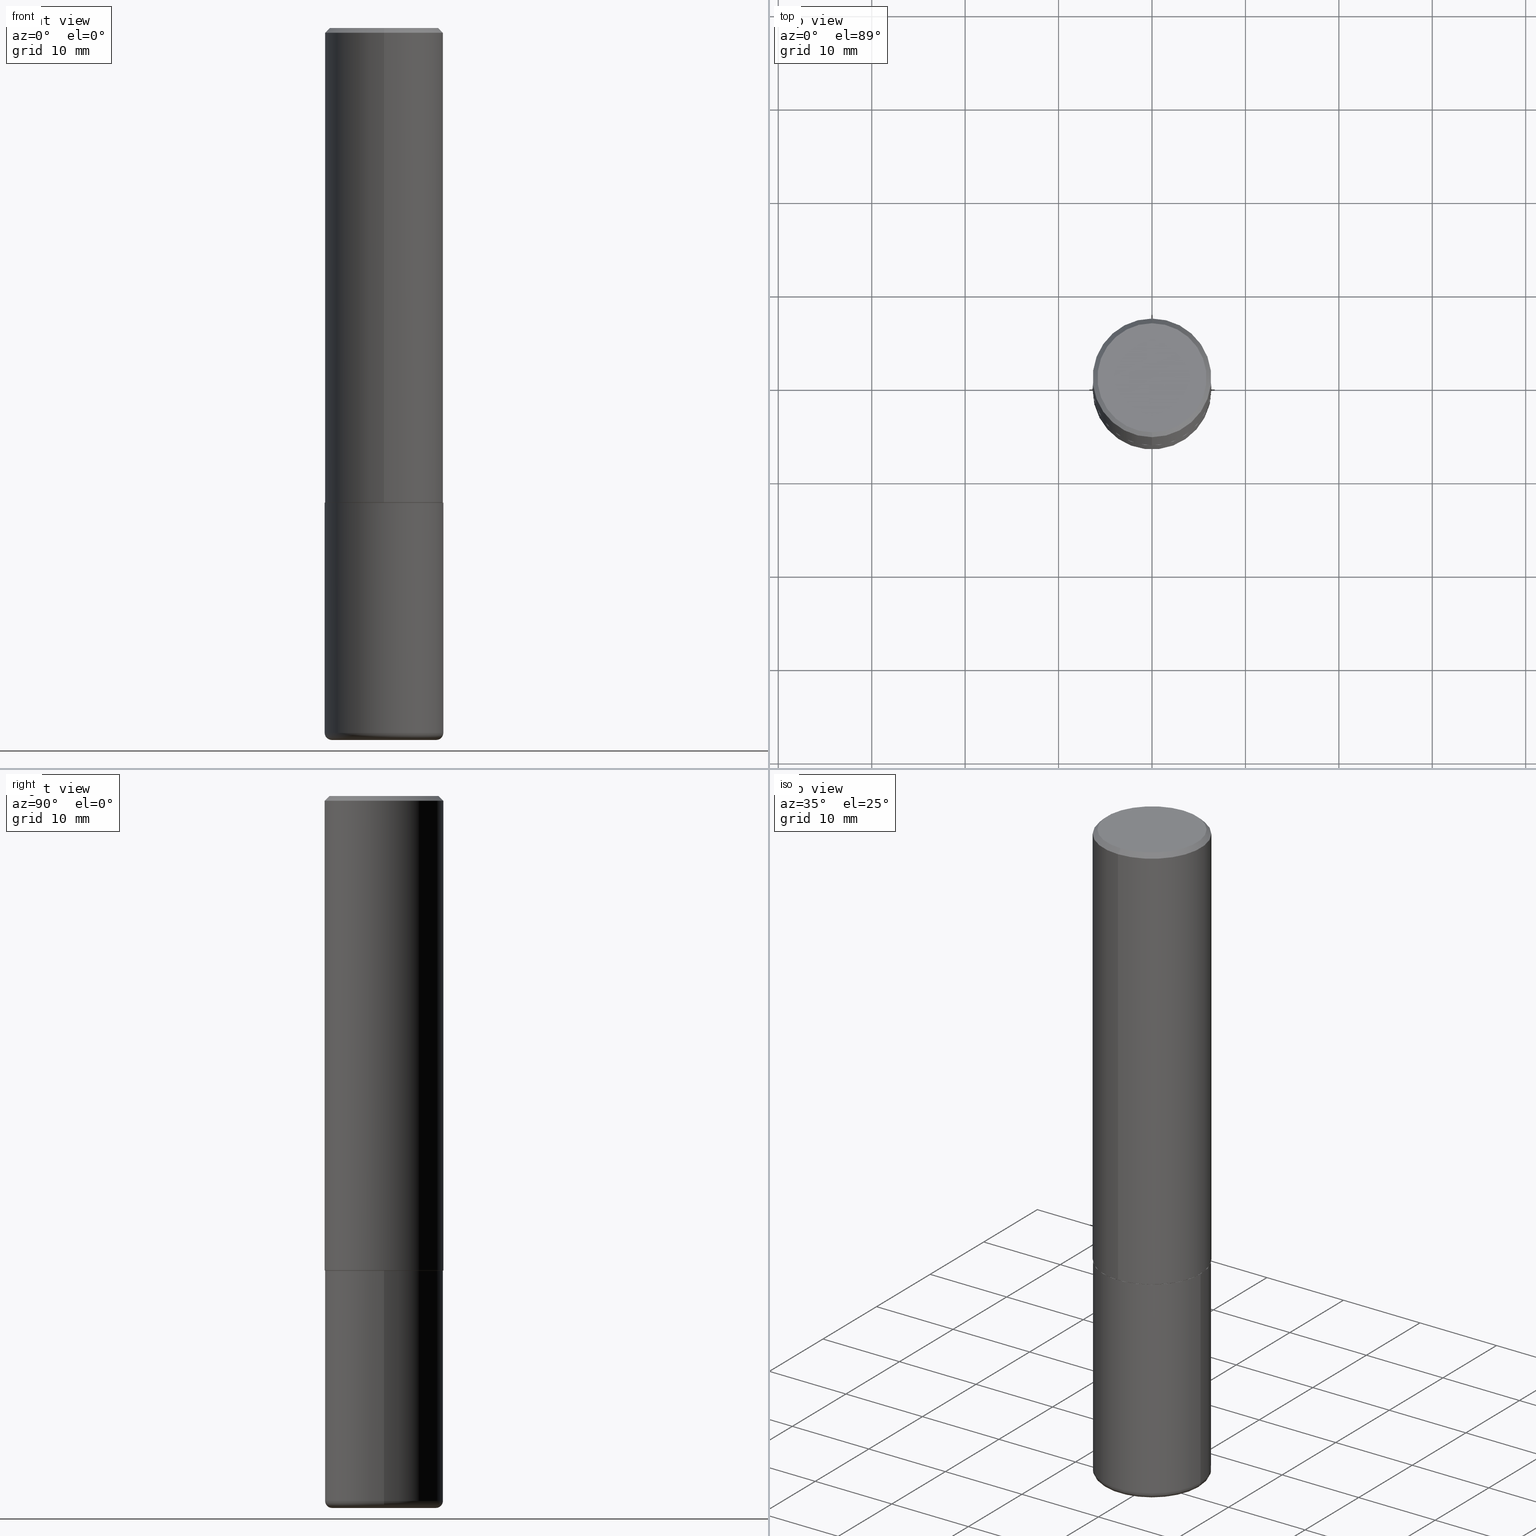
[diagram: canonical four-view strip — front | top / right | iso, engineering-drawing reading convention]
A machine part, canonical four-view strip (front | top / right | iso — engineering-drawing reading convention). The complete STEP part file that produces these views, byte-faithful:
ISO-10303-21;
HEADER;
FILE_DESCRIPTION (( 'STEP AP203' ),
    '1' );
FILE_NAME ('36574.STEP',
    '2024-03-01T16:45:40',
    ( '' ),
    ( '' ),
    'SwSTEP 2.0',
    'SolidWorks 2023',
    '' );
FILE_SCHEMA (( 'CONFIG_CONTROL_DESIGN' ));
ENDSEC;

DATA;
#1 = ORIENTED_EDGE ( 'NONE', *, *, #191, .T. ) ;
#2 = AXIS2_PLACEMENT_3D ( 'NONE', #237, #38, #359 ) ;
#3 = CONICAL_SURFACE ( 'NONE', #358, 0.2500000000000000555, 0.7853981633974471688 ) ;
#4 = ORIENTED_EDGE ( 'NONE', *, *, #144, .F. ) ;
#5 = MANIFOLD_SOLID_BREP ( 'Body-Move/Copy2[1]', #226 ) ;
#6 = APPROVAL ( #410, 'UNSPECIFIED' ) ;
#7 = ORIENTED_EDGE ( 'NONE', *, *, #290, .F. ) ;
#8 = DIRECTION ( 'NONE',  ( 2.438088387897960049E-29, -3.491481338843145188E-15, -1.000000000000000000 ) ) ;
#9 = ORIENTED_EDGE ( 'NONE', *, *, #245, .T. ) ;
#10 = CONICAL_SURFACE ( 'NONE', #98, 0.2489999999999999991, 0.7853981633976704346 ) ;
#11 = PERSON_AND_ORGANIZATION ( #36, #148 ) ;
#12 = FACE_OUTER_BOUND ( 'NONE', #134, .T. ) ;
#13 = CARTESIAN_POINT ( 'NONE',  ( 1.606081415867842645E-15, 0.2300000000000002043, -8.970083069684097739E-16 ) ) ;
#14 = APPROVAL_ROLE ( '' ) ;
#15 = CC_DESIGN_DATE_AND_TIME_ASSIGNMENT ( #365, #395, ( #159 ) ) ;
#16 = DIRECTION ( 'NONE',  ( -6.982962677686266711E-15, -1.000000000000000000, 3.278217592397113101E-15 ) ) ;
#17 = AXIS2_PLACEMENT_3D ( 'NONE', #351, #417, #29 ) ;
#18 = CARTESIAN_POINT ( 'NONE',  ( 4.890937612370273754E-29, -6.982962677686291954E-15, -2.000000000000000444 ) ) ;
#19 = FACE_OUTER_BOUND ( 'NONE', #101, .T. ) ;
#20 = PRODUCT_RELATED_PRODUCT_CATEGORY ( 'detail', '', ( #355 ) ) ;
#21 = DIRECTION ( 'NONE',  ( -4.851104656540957964E-15, -0.7071067811865491270, -0.7071067811865459074 ) ) ;
#22 = ADVANCED_FACE ( 'NONE', ( #12 ), #80, .T. ) ;
#23 = ADVANCED_FACE ( 'NONE', ( #78 ), #294, .T. ) ;
#24 = PERSON_AND_ORGANIZATION_ROLE ( 'design_owner' ) ;
#25 = AXIS2_PLACEMENT_3D ( 'NONE', #49, #354, #387 ) ;
#26 = CARTESIAN_POINT ( 'NONE',  ( -0.2500000000000000000, -6.899974287624967004E-15, -2.000000000000000444 ) ) ;
#27 = DIRECTION ( 'NONE',  ( 1.000000000000000000, -6.982962677686262766E-15, 4.883557194083111780E-29 ) ) ;
#28 = PERSON_AND_ORGANIZATION ( #36, #148 ) ;
#29 = DIRECTION ( 'NONE',  ( -6.982962677686265133E-15, -1.000000000000000000, 3.291383124896702687E-15 ) ) ;
#30 = VERTEX_POINT ( 'NONE', #388 ) ;
#31 = AXIS2_PLACEMENT_3D ( 'NONE', #307, #152, #27 ) ;
#32 = CARTESIAN_POINT ( 'NONE',  ( -0.2200000000000000011, -8.806505557691921187E-15, -2.970000000000000195 ) ) ;
#33 = PRODUCT_DEFINITION_SHAPE ( 'NONE', 'NONE',  #299 ) ;
#34 = ORIENTED_EDGE ( 'NONE', *, *, #197, .T. ) ;
#35 = DESIGN_CONTEXT ( 'detailed design', #390, 'design' ) ;
#36 = PERSON ( 'UNSPECIFIED', 'UNSPECIFIED', 'UNSPECIFIED', ('UNSPECIFIED'), ('UNSPECIFIED'), ('UNSPECIFIED') ) ;
#37 = ORIENTED_EDGE ( 'NONE', *, *, #243, .T. ) ;
#38 = DIRECTION ( 'NONE',  ( -2.445468806185136597E-29, 3.491481338843145583E-15, 1.000000000000000000 ) ) ;
#39 = EDGE_CURVE ( 'NONE', #30, #315, #384, .T. ) ;
#40 = APPROVAL_STATUS ( 'not_yet_approved' ) ;
#41 = EDGE_CURVE ( 'NONE', #167, #323, #158, .T. ) ;
#42 = AXIS2_PLACEMENT_3D ( 'NONE', #277, #332, #297 ) ;
#43 = AXIS2_PLACEMENT_3D ( 'NONE', #284, #220, #382 ) ;
#44 = ORIENTED_EDGE ( 'NONE', *, *, #406, .F. ) ;
#45 = ORIENTED_EDGE ( 'NONE', *, *, #165, .T. ) ;
#46 = PERSON_AND_ORGANIZATION ( #36, #148 ) ;
#47 = DIRECTION ( 'NONE',  ( 5.024295867789177050E-15, 0.7071067811867068897, 0.7071067811863879227 ) ) ;
#48 = APPROVAL_DATE_TIME ( #298, #214 ) ;
#49 = CARTESIAN_POINT ( 'NONE',  ( 4.890937612370273754E-29, -6.982962677686291954E-15, -2.000000000000000444 ) ) ;
#50 = UNCERTAINTY_MEASURE_WITH_UNIT (LENGTH_MEASURE( 1.000000000000000082E-05 ), #312, 'distance_accuracy_value', 'NONE');
#51 = AXIS2_PLACEMENT_3D ( 'NONE', #361, #8, #231 ) ;
#52 = EDGE_CURVE ( 'NONE', #415, #338, #181, .T. ) ;
#53 = CALENDAR_DATE ( 2024, 1, 3 ) ;
#54 = CARTESIAN_POINT ( 'NONE',  ( 4.890205017583842726E-31, -6.984011795117202972E-17, -0.02000000000000005593 ) ) ;
#55 = PERSON_AND_ORGANIZATION ( #36, #148 ) ;
#56 = CARTESIAN_POINT ( 'NONE',  ( 1.745740669421567269E-15, 0.2499999999999999722, -0.02000000000000093023 ) ) ;
#57 = ADVANCED_FACE ( 'NONE', ( #170 ), #110, .T. ) ;
#58 = CARTESIAN_POINT ( 'NONE',  ( -0.2200000000000000011, -8.752296367410555115E-15, -2.999999999999999556 ) ) ;
#59 = CIRCLE ( 'NONE', #325, 0.2500000000000000000 ) ;
#60 = CC_DESIGN_SECURITY_CLASSIFICATION ( #159, ( #275 ) ) ;
#61 = DIRECTION ( 'NONE',  ( 2.445102508791914532E-29, -3.492005897558592316E-15, -1.000000000000000000 ) ) ;
#62 = DIRECTION ( 'NONE',  ( 1.000000000000000000, -6.982962677686269866E-15, 0.000000000000000000 ) ) ;
#63 = DIRECTION ( 'NONE',  ( 7.105427357601001859E-15, 1.000000000000000000, -3.491481338843145583E-15 ) ) ;
#64 = ORIENTED_EDGE ( 'NONE', *, *, #41, .F. ) ;
#65 = VECTOR ( 'NONE', #242, 39.37007874015748143 ) ;
#66 = APPLICATION_PROTOCOL_DEFINITION ( 'international standard', 'config_control_design', 1994, #390 ) ;
#67 = CARTESIAN_POINT ( 'NONE',  ( 0.2200000000000000011, -1.201069580562041471E-14, -2.999999999999999556 ) ) ;
#68 = ORIENTED_EDGE ( 'NONE', *, *, #362, .T. ) ;
#69 = LINE ( 'NONE', #216, #79 ) ;
#70 = ORIENTED_EDGE ( 'NONE', *, *, #233, .T. ) ;
#71 = ADVANCED_FACE ( 'NONE', ( #265 ), #194, .T. ) ;
#72 = ORIENTED_EDGE ( 'NONE', *, *, #328, .F. ) ;
#73 = PERSON_AND_ORGANIZATION ( #36, #148 ) ;
#74 = CIRCLE ( 'NONE', #86, 0.02999999999999971440 ) ;
#75 = DIRECTION ( 'NONE',  ( -2.445102508791913971E-29, 3.492005897558592710E-15, 1.000000000000000000 ) ) ;
#76 = ORIENTED_EDGE ( 'NONE', *, *, #185, .T. ) ;
#77 = DIRECTION ( 'NONE',  ( -6.982962677686265922E-15, -1.000000000000000000, 3.492005897558592316E-15 ) ) ;
#78 = FACE_OUTER_BOUND ( 'NONE', #353, .T. ) ;
#79 = VECTOR ( 'NONE', #136, 39.37007874015748143 ) ;
#80 = CYLINDRICAL_SURFACE ( 'NONE', #273, 0.2500000000000001110 ) ;
#81 = APPLICATION_CONTEXT ( 'configuration controlled 3d designs of mechanical parts and assemblies' ) ;
#82 = DIRECTION ( 'NONE',  ( -2.445468806185136597E-29, 3.491481338843145583E-15, 1.000000000000000000 ) ) ;
#83 = ORIENTED_EDGE ( 'NONE', *, *, #406, .T. ) ;
#84 = PERSON_AND_ORGANIZATION_ROLE ( 'creator' ) ;
#85 = DIRECTION ( 'NONE',  ( -2.445468806185136597E-29, 3.491481338843145583E-15, 1.000000000000000000 ) ) ;
#86 = AXIS2_PLACEMENT_3D ( 'NONE', #32, #63, #337 ) ;
#87 = CIRCLE ( 'NONE', #292, 0.2489999999999999991 ) ;
#88 = DIMENSIONAL_EXPONENTS ( 1.000000000000000000, 0.000000000000000000, 0.000000000000000000, 0.000000000000000000, 0.000000000000000000, 0.000000000000000000, 0.000000000000000000 ) ;
#89 = FACE_OUTER_BOUND ( 'NONE', #221, .T. ) ;
#90 = CARTESIAN_POINT ( 'NONE',  ( 4.890205017583842726E-31, -6.984011795117202972E-17, -0.02000000000000005593 ) ) ;
#91 = FACE_OUTER_BOUND ( 'NONE', #263, .T. ) ;
#92 = CIRCLE ( 'NONE', #202, 0.02999999999999971440 ) ;
#93 = PLANE ( 'NONE',  #189 ) ;
#94 = DIRECTION ( 'NONE',  ( 1.000000000000000000, 0.000000000000000000, 0.000000000000000000 ) ) ;
#95 = DIRECTION ( 'NONE',  ( -6.982962677686265133E-15, -1.000000000000000000, 3.291383124896702687E-15 ) ) ;
#96 = ORIENTED_EDGE ( 'NONE', *, *, #39, .T. ) ;
#97 = CARTESIAN_POINT ( 'NONE',  ( 1.675911042644704760E-15, 0.2300000000000002043, -9.908552574983423647E-16 ) ) ;
#98 = AXIS2_PLACEMENT_3D ( 'NONE', #304, #175, #206 ) ;
#99 = CALENDAR_DATE ( 2024, 1, 3 ) ;
#100 = LINE ( 'NONE', #190, #132 ) ;
#101 = EDGE_LOOP ( 'NONE', ( #45, #186, #258, #341 ) ) ;
#102 = APPLICATION_PROTOCOL_DEFINITION ( 'international standard', 'config_control_design', 1994, #81 ) ;
#103 = LENGTH_MEASURE_WITH_UNIT ( LENGTH_MEASURE( 0.02539999999999999897 ), #309 );
#104 = ORIENTED_EDGE ( 'NONE', *, *, #107, .T. ) ;
#105 = LINE ( 'NONE', #133, #234 ) ;
#106 = VERTEX_POINT ( 'NONE', #232 ) ;
#107 = EDGE_CURVE ( 'NONE', #356, #218, #141, .T. ) ;
#108 = ADVANCED_FACE ( 'NONE', ( #91 ), #399, .F. ) ;
#109 = CARTESIAN_POINT ( 'NONE',  ( 0.000000000000000000, 0.000000000000000000, 0.000000000000000000 ) ) ;
#110 = PLANE ( 'NONE',  #51 ) ;
#111 = CARTESIAN_POINT ( 'NONE',  ( 4.589308283664181382E-45, -6.554282094368286806E-31, -1.876939010598653295E-16 ) ) ;
#112 = AXIS2_PLACEMENT_3D ( 'NONE', #177, #394, #154 ) ;
#113 = APPROVAL_PERSON_ORGANIZATION ( #73, #214, #14 ) ;
#114 = CARTESIAN_POINT ( 'NONE',  ( 1.769251412042698169E-15, 0.2489999999999930047, -2.000000000000000888 ) ) ;
#115 = DATE_AND_TIME ( #53, #228 ) ;
#116 = EDGE_LOOP ( 'NONE', ( #188, #386, #383, #1 ) ) ;
#117 = COORDINATED_UNIVERSAL_TIME_OFFSET ( 5, 0, .BEHIND. ) ;
#118 = DIRECTION ( 'NONE',  ( 6.982962677686265922E-15, 1.000000000000000000, -3.492005897558592710E-15 ) ) ;
#119 = ADVANCED_FACE ( 'NONE', ( #300 ), #3, .T. ) ;
#120 = FACE_OUTER_BOUND ( 'NONE', #116, .T. ) ;
#121 = AXIS2_PLACEMENT_3D ( 'NONE', #54, #61, #150 ) ;
#122 = DIRECTION ( 'NONE',  ( -2.445468806185136597E-29, 3.491481338843145583E-15, 1.000000000000000000 ) ) ;
#123 = CALENDAR_DATE ( 2024, 1, 3 ) ;
#124 = DIRECTION ( 'NONE',  ( 1.000000000000000000, -6.982962677686262766E-15, 4.883557194083111780E-29 ) ) ;
#125 = CARTESIAN_POINT ( 'NONE',  ( 4.887759915075037439E-29, -6.980519789219626565E-15, -1.999000000000000110 ) ) ;
#126 = CONICAL_SURFACE ( 'NONE', #121, 0.2500000000000000555, 0.7853981633974471688 ) ;
#127 =( GEOMETRIC_REPRESENTATION_CONTEXT ( 3 ) GLOBAL_UNCERTAINTY_ASSIGNED_CONTEXT ( ( #50 ) ) GLOBAL_UNIT_ASSIGNED_CONTEXT ( ( #312, #187, #252 ) ) REPRESENTATION_CONTEXT ( 'NONE', 'WORKASPACE' ) );
#128 = CARTESIAN_POINT ( 'NONE',  ( -0.2500000000000000000, 1.776356839400250465E-15, -1.229733772563726445E-29 ) ) ;
#129 = DIRECTION ( 'NONE',  ( -4.937700262165644559E-15, -0.7071067811867021158, 0.7071067811863929187 ) ) ;
#130 = EDGE_CURVE ( 'NONE', #315, #30, #59, .T. ) ;
#131 = DIRECTION ( 'NONE',  ( -2.445102508791914532E-29, 3.492005897558592316E-15, 1.000000000000000000 ) ) ;
#132 = VECTOR ( 'NONE', #21, 39.37007874015748143 ) ;
#133 = CARTESIAN_POINT ( 'NONE',  ( -1.738757706743831162E-15, -0.2490000000000069935, -1.999999999999999112 ) ) ;
#134 = EDGE_LOOP ( 'NONE', ( #83, #295, #223, #7 ) ) ;
#135 = EDGE_CURVE ( 'NONE', #218, #199, #278, .T. ) ;
#136 = DIRECTION ( 'NONE',  ( -2.445468806185136877E-29, 3.491481338843145188E-15, 1.000000000000000000 ) ) ;
#137 = VERTEX_POINT ( 'NONE', #210 ) ;
#138 = CC_DESIGN_APPROVAL ( #214, ( #275 ) ) ;
#139 = ORIENTED_EDGE ( 'NONE', *, *, #135, .F. ) ;
#140 = CARTESIAN_POINT ( 'NONE',  ( 0.000000000000000000, 0.000000000000000000, 0.000000000000000000 ) ) ;
#141 = LINE ( 'NONE', #114, #163 ) ;
#142 = EDGE_LOOP ( 'NONE', ( #162, #322, #418, #255 ) ) ;
#143 = DIRECTION ( 'NONE',  ( 2.445102508791913971E-29, -3.492005897558592710E-15, -1.000000000000000000 ) ) ;
#144 = EDGE_CURVE ( 'NONE', #356, #106, #87, .T. ) ;
#145 = DIRECTION ( 'NONE',  ( 2.438088387897960049E-29, -3.491481338843145188E-15, -1.000000000000000000 ) ) ;
#146 = CARTESIAN_POINT ( 'NONE',  ( 0.2200000000000000011, -1.190595136545512292E-14, -2.970000000000000195 ) ) ;
#147 = AXIS2_PLACEMENT_3D ( 'NONE', #125, #247, #16 ) ;
#148 = ORGANIZATION ( 'UNSPECIFIED', 'UNSPECIFIED', '' ) ;
#149 = COORDINATED_UNIVERSAL_TIME_OFFSET ( 5, 0, .BEHIND. ) ;
#150 = DIRECTION ( 'NONE',  ( 6.982962677686265133E-15, 1.000000000000000000, -3.500180241882336472E-15 ) ) ;
#151 = FACE_OUTER_BOUND ( 'NONE', #380, .T. ) ;
#152 = DIRECTION ( 'NONE',  ( -2.445468806185136597E-29, 3.491481338843145583E-15, 1.000000000000000000 ) ) ;
#153 = PERSON_AND_ORGANIZATION ( #36, #148 ) ;
#154 = DIRECTION ( 'NONE',  ( 1.000000000000000000, -6.982962677686270655E-15, 0.000000000000000000 ) ) ;
#155 = LINE ( 'NONE', #413, #261 ) ;
#156 = ADVANCED_FACE ( 'NONE', ( #120 ), #126, .T. ) ;
#157 = EDGE_LOOP ( 'NONE', ( #72, #4 ) ) ;
#158 = CIRCLE ( 'NONE', #25, 0.2500000000000000000 ) ;
#159 = SECURITY_CLASSIFICATION ( '', '', #205 ) ;
#160 = CARTESIAN_POINT ( 'NONE',  ( 1.772804125721499264E-15, 0.2489999999999930047, -2.000000000000000888 ) ) ;
#161 = ORIENTED_EDGE ( 'NONE', *, *, #389, .T. ) ;
#162 = ORIENTED_EDGE ( 'NONE', *, *, #305, .F. ) ;
#163 = VECTOR ( 'NONE', #47, 39.37007874015748854 ) ;
#164 = DIRECTION ( 'NONE',  ( -2.445102508791914532E-29, 3.492005897558592316E-15, 1.000000000000000000 ) ) ;
#165 = EDGE_CURVE ( 'NONE', #256, #200, #306, .T. ) ;
#166 = ORIENTED_EDGE ( 'NONE', *, *, #305, .T. ) ;
#167 = VERTEX_POINT ( 'NONE', #241 ) ;
#168 = APPROVAL ( #266, 'UNSPECIFIED' ) ;
#169 = CIRCLE ( 'NONE', #147, 0.2500000000000002220 ) ;
#170 = FACE_OUTER_BOUND ( 'NONE', #192, .T. ) ;
#171 = ADVANCED_FACE ( 'NONE', ( #363 ), #93, .F. ) ;
#172 = CARTESIAN_POINT ( 'NONE',  ( 4.890937612370273754E-29, -6.982962677686291954E-15, -2.000000000000000444 ) ) ;
#173 = COORDINATED_UNIVERSAL_TIME_OFFSET ( 5, 0, .BEHIND. ) ;
#174 = DIRECTION ( 'NONE',  ( -2.445468806185136597E-29, 3.491481338843145583E-15, 1.000000000000000000 ) ) ;
#175 = DIRECTION ( 'NONE',  ( -2.445102508791914532E-29, 3.492005897558592316E-15, 1.000000000000000000 ) ) ;
#176 = DIRECTION ( 'NONE',  ( 1.000000000000000000, -6.982962677686270655E-15, 0.000000000000000000 ) ) ;
#177 = CARTESIAN_POINT ( 'NONE',  ( 7.336406418555408669E-29, -1.047444401652943478E-14, -2.999999999999999556 ) ) ;
#178 = DIRECTION ( 'NONE',  ( 0.000000000000000000, 0.000000000000000000, 1.000000000000000000 ) ) ;
#179 = FACE_OUTER_BOUND ( 'NONE', #142, .T. ) ;
#180 = AXIS2_PLACEMENT_3D ( 'NONE', #391, #82, #229 ) ;
#181 = CIRCLE ( 'NONE', #339, 0.2300000000000002043 ) ;
#182 = LOCAL_TIME ( 11, 45, 40.00000000000000000, #149 ) ;
#183 = LINE ( 'NONE', #128, #248 ) ;
#184 = ORIENTED_EDGE ( 'NONE', *, *, #41, .T. ) ;
#185 = EDGE_CURVE ( 'NONE', #323, #167, #285, .T. ) ;
#186 = ORIENTED_EDGE ( 'NONE', *, *, #373, .T. ) ;
#187 =( NAMED_UNIT ( * ) PLANE_ANGLE_UNIT ( ) SI_UNIT ( $, .RADIAN. ) );
#188 = ORIENTED_EDGE ( 'NONE', *, *, #362, .F. ) ;
#189 = AXIS2_PLACEMENT_3D ( 'NONE', #13, #143, #118 ) ;
#190 = CARTESIAN_POINT ( 'NONE',  ( -1.715124499442882496E-15, -0.2500000000000001110, -0.01999999999999918163 ) ) ;
#191 = EDGE_CURVE ( 'NONE', #199, #393, #217, .T. ) ;
#192 = EDGE_LOOP ( 'NONE', ( #346, #215 ) ) ;
#193 = ORIENTED_EDGE ( 'NONE', *, *, #290, .T. ) ;
#194 = CYLINDRICAL_SURFACE ( 'NONE', #239, 0.2500000000000001110 ) ;
#195 = CC_DESIGN_DATE_AND_TIME_ASSIGNMENT ( #196, #350, ( #299 ) ) ;
#196 = DATE_AND_TIME ( #347, #414 ) ;
#197 = EDGE_CURVE ( 'NONE', #338, #415, #352, .T. ) ;
#198 = EDGE_LOOP ( 'NONE', ( #139, #70, #193, #259 ) ) ;
#199 = VERTEX_POINT ( 'NONE', #400 ) ;
#200 = VERTEX_POINT ( 'NONE', #58 ) ;
#201 = ADVANCED_BREP_SHAPE_REPRESENTATION ( '36574', ( #5, #416, #366 ), #127 ) ;
#202 = AXIS2_PLACEMENT_3D ( 'NONE', #146, #336, #62 ) ;
#203 = CARTESIAN_POINT ( 'NONE',  ( 4.890205017583829064E-29, -6.984011795117184631E-15, -2.000000000000000000 ) ) ;
#204 = ADVANCED_FACE ( 'NONE', ( #89 ), #10, .T. ) ;
#205 = SECURITY_CLASSIFICATION_LEVEL ( 'unclassified' ) ;
#206 = DIRECTION ( 'NONE',  ( -6.982962677686265133E-15, -1.000000000000000000, 3.291383124896702687E-15 ) ) ;
#207 = CALENDAR_DATE ( 2024, 1, 3 ) ;
#208 = CARTESIAN_POINT ( 'NONE',  ( 4.890205017583842726E-31, -6.984011795117202972E-17, -0.02000000000000005593 ) ) ;
#209 = EDGE_CURVE ( 'NONE', #415, #199, #331, .T. ) ;
#210 = CARTESIAN_POINT ( 'NONE',  ( -1.745740669421519346E-15, -0.2500000000000072164, -1.998999999999999444 ) ) ;
#211 = CIRCLE ( 'NONE', #254, 0.2489999999999999991 ) ;
#212 = CARTESIAN_POINT ( 'NONE',  ( 1.776356839400276103E-15, 0.2499999999999933109, -1.999000000000000998 ) ) ;
#213 = CARTESIAN_POINT ( 'NONE',  ( 4.890205017583829064E-29, -6.984011795117184631E-15, -2.000000000000000000 ) ) ;
#214 = APPROVAL ( #40, 'UNSPECIFIED' ) ;
#215 = ORIENTED_EDGE ( 'NONE', *, *, #245, .F. ) ;
#216 = CARTESIAN_POINT ( 'NONE',  ( 0.2500000000000000000, -1.745740669421566678E-15, 1.219044193948983948E-29 ) ) ;
#217 = CIRCLE ( 'NONE', #267, 0.2500000000000000555 ) ;
#218 = VERTEX_POINT ( 'NONE', #212 ) ;
#219 = DATE_AND_TIME ( #99, #379 ) ;
#220 = DIRECTION ( 'NONE',  ( -2.445468806185136597E-29, 3.491481338843145583E-15, 1.000000000000000000 ) ) ;
#221 = EDGE_LOOP ( 'NONE', ( #409, #104, #44, #281 ) ) ;
#222 = MECHANICAL_CONTEXT ( 'NONE', #81, 'mechanical' ) ;
#223 = ORIENTED_EDGE ( 'NONE', *, *, #249, .F. ) ;
#224 = CARTESIAN_POINT ( 'NONE',  ( -1.715124499442882496E-15, -0.2500000000000001110, -0.01999999999999918163 ) ) ;
#225 = ORIENTED_EDGE ( 'NONE', *, *, #233, .F. ) ;
#226 = CLOSED_SHELL ( 'NONE', ( #23, #230, #108, #375, #364, #57 ) ) ;
#227 = TOROIDAL_SURFACE ( 'NONE', #31, 0.2200000000000000011, 0.02999999999999969705 ) ;
#228 = LOCAL_TIME ( 11, 45, 40.00000000000000000, #173 ) ;
#229 = DIRECTION ( 'NONE',  ( 1.000000000000000000, -6.982962677686266711E-15, 4.876176775795935793E-29 ) ) ;
#230 = ADVANCED_FACE ( 'NONE', ( #19 ), #319, .T. ) ;
#231 = DIRECTION ( 'NONE',  ( -1.000000000000000000, 6.982962677686265922E-15, -4.876176775795935793E-29 ) ) ;
#232 = CARTESIAN_POINT ( 'NONE',  ( -1.738757706743831162E-15, -0.2490000000000069935, -1.999999999999999112 ) ) ;
#233 = EDGE_CURVE ( 'NONE', #218, #137, #169, .T. ) ;
#234 = VECTOR ( 'NONE', #129, 39.37007874015748143 ) ;
#235 = EDGE_LOOP ( 'NONE', ( #293, #381, #161, #225 ) ) ;
#236 = APPROVAL_DATE_TIME ( #115, #168 ) ;
#237 = CARTESIAN_POINT ( 'NONE',  ( 7.263042354369856275E-29, -1.036969957636414298E-14, -2.970000000000000195 ) ) ;
#238 = DIRECTION ( 'NONE',  ( 1.000000000000000000, -6.982962677686270655E-15, 0.000000000000000000 ) ) ;
#239 = AXIS2_PLACEMENT_3D ( 'NONE', #140, #318, #264 ) ;
#240 = CC_DESIGN_APPROVAL ( #6, ( #299 ) ) ;
#241 = CARTESIAN_POINT ( 'NONE',  ( 0.2500000000000000000, -8.728703347107858632E-15, -2.000000000000000444 ) ) ;
#242 = DIRECTION ( 'NONE',  ( -2.445102508791914532E-29, 3.492005897558592710E-15, 1.000000000000000000 ) ) ;
#243 = EDGE_CURVE ( 'NONE', #256, #30, #92, .T. ) ;
#244 = CARTESIAN_POINT ( 'NONE',  ( 7.263042354369856275E-29, -1.036969957636414298E-14, -2.970000000000000195 ) ) ;
#245 = EDGE_CURVE ( 'NONE', #200, #256, #314, .T. ) ;
#246 = CC_DESIGN_PERSON_AND_ORGANIZATION_ASSIGNMENT ( #272, #270, ( #159 ) ) ;
#247 = DIRECTION ( 'NONE',  ( -2.445102508791914532E-29, 3.492005897558592316E-15, 1.000000000000000000 ) ) ;
#248 = VECTOR ( 'NONE', #279, 39.37007874015748143 ) ;
#249 = EDGE_CURVE ( 'NONE', #393, #199, #377, .T. ) ;
#250 = FACE_OUTER_BOUND ( 'NONE', #235, .T. ) ;
#251 = CARTESIAN_POINT ( 'NONE',  ( 4.887759915075037439E-29, -6.980519789219626565E-15, -1.999000000000000110 ) ) ;
#252 =( NAMED_UNIT ( * ) SI_UNIT ( $, .STERADIAN. ) SOLID_ANGLE_UNIT ( ) );
#253 = CARTESIAN_POINT ( 'NONE',  ( -1.646519519465167954E-15, -0.2300000000000002043, 6.154674553786116072E-16 ) ) ;
#254 = AXIS2_PLACEMENT_3D ( 'NONE', #372, #131, #95 ) ;
#255 = ORIENTED_EDGE ( 'NONE', *, *, #185, .F. ) ;
#256 = VERTEX_POINT ( 'NONE', #67 ) ;
#257 = CARTESIAN_POINT ( 'NONE',  ( -0.2499999999999998612, -8.593342736963892519E-15, -2.970000000000000195 ) ) ;
#258 = ORIENTED_EDGE ( 'NONE', *, *, #39, .F. ) ;
#259 = ORIENTED_EDGE ( 'NONE', *, *, #191, .F. ) ;
#260 = AXIS2_PLACEMENT_3D ( 'NONE', #368, #85, #176 ) ;
#261 = VECTOR ( 'NONE', #404, 39.37007874015748143 ) ;
#262 = CC_DESIGN_PERSON_AND_ORGANIZATION_ASSIGNMENT ( #405, #24, ( #355 ) ) ;
#263 = EDGE_LOOP ( 'NONE', ( #184, #76 ) ) ;
#264 = DIRECTION ( 'NONE',  ( -6.982962677686266711E-15, -1.000000000000000000, 3.492005897558592710E-15 ) ) ;
#265 = FACE_OUTER_BOUND ( 'NONE', #198, .T. ) ;
#266 = APPROVAL_STATUS ( 'not_yet_approved' ) ;
#267 = AXIS2_PLACEMENT_3D ( 'NONE', #208, #302, #327 ) ;
#268 = ORIENTED_EDGE ( 'NONE', *, *, #130, .F. ) ;
#269 = CARTESIAN_POINT ( 'NONE',  ( 7.263042354369856275E-29, -1.036969957636414298E-14, -2.970000000000000195 ) ) ;
#270 = PERSON_AND_ORGANIZATION_ROLE ( 'classification_officer' ) ;
#271 = DIRECTION ( 'NONE',  ( 6.982962677686265133E-15, 1.000000000000000000, -3.500180241882336472E-15 ) ) ;
#272 = PERSON_AND_ORGANIZATION ( #36, #148 ) ;
#273 = AXIS2_PLACEMENT_3D ( 'NONE', #109, #357, #317 ) ;
#274 = VECTOR ( 'NONE', #301, 39.37007874015748143 ) ;
#275 = PRODUCT_DEFINITION_FORMATION_WITH_SPECIFIED_SOURCE ( 'ANY', '', #355, .NOT_KNOWN. ) ;
#276 = DIRECTION ( 'NONE',  ( -2.445102508791914532E-29, 3.492005897558592316E-15, 1.000000000000000000 ) ) ;
#277 = CARTESIAN_POINT ( 'NONE',  ( 4.589308283664181382E-45, -6.554282094368286806E-31, -1.876939010598653295E-16 ) ) ;
#278 = LINE ( 'NONE', #369, #65 ) ;
#279 = DIRECTION ( 'NONE',  ( -2.445468806185136877E-29, 3.491481338843145188E-15, 1.000000000000000000 ) ) ;
#280 = CYLINDRICAL_SURFACE ( 'NONE', #43, 0.2500000000000000000 ) ;
#281 = ORIENTED_EDGE ( 'NONE', *, *, #389, .F. ) ;
#282 = CARTESIAN_POINT ( 'NONE',  ( 4.890205017583842726E-31, -6.984011795117202972E-17, -0.02000000000000005593 ) ) ;
#283 = PERSON_AND_ORGANIZATION_ROLE ( 'creator' ) ;
#284 = CARTESIAN_POINT ( 'NONE',  ( 0.000000000000000000, 0.000000000000000000, 0.000000000000000000 ) ) ;
#285 = CIRCLE ( 'NONE', #398, 0.2500000000000000000 ) ;
#286 = ADVANCED_FACE ( 'NONE', ( #250 ), #392, .T. ) ;
#287 = APPROVAL_PERSON_ORGANIZATION ( #153, #6, #376 ) ;
#288 = DIRECTION ( 'NONE',  ( -6.982962677686265133E-15, -1.000000000000000000, 3.500180241882336472E-15 ) ) ;
#289 = ORIENTED_EDGE ( 'NONE', *, *, #348, .F. ) ;
#290 = EDGE_CURVE ( 'NONE', #137, #393, #155, .T. ) ;
#291 = ORIENTED_EDGE ( 'NONE', *, *, #209, .F. ) ;
#292 = AXIS2_PLACEMENT_3D ( 'NONE', #203, #276, #335 ) ;
#293 = ORIENTED_EDGE ( 'NONE', *, *, #107, .F. ) ;
#294 = CYLINDRICAL_SURFACE ( 'NONE', #180, 0.2500000000000000000 ) ;
#295 = ORIENTED_EDGE ( 'NONE', *, *, #135, .T. ) ;
#296 = ORIENTED_EDGE ( 'NONE', *, *, #197, .F. ) ;
#297 = DIRECTION ( 'NONE',  ( -6.982962677686265922E-15, -1.000000000000000000, 3.492005897558592316E-15 ) ) ;
#298 = DATE_AND_TIME ( #123, #334 ) ;
#299 = PRODUCT_DEFINITION ( 'UNKNOWN', '', #275, #35 ) ;
#300 = FACE_OUTER_BOUND ( 'NONE', #316, .T. ) ;
#301 = DIRECTION ( 'NONE',  ( 4.937700262164541731E-15, 0.7071067811865442421, -0.7071067811865507924 ) ) ;
#302 = DIRECTION ( 'NONE',  ( -2.445102508791914532E-29, 3.492005897558592316E-15, 1.000000000000000000 ) ) ;
#303 = CARTESIAN_POINT ( 'NONE',  ( 0.000000000000000000, 0.000000000000000000, 0.000000000000000000 ) ) ;
#304 = CARTESIAN_POINT ( 'NONE',  ( 4.890205017583829064E-29, -6.984011795117184631E-15, -2.000000000000000000 ) ) ;
#305 = EDGE_CURVE ( 'NONE', #315, #323, #183, .T. ) ;
#306 = CIRCLE ( 'NONE', #260, 0.2200000000000000011 ) ;
#307 = CARTESIAN_POINT ( 'NONE',  ( 7.263042354369856275E-29, -1.036969957636414298E-14, -2.970000000000000195 ) ) ;
#308 = CIRCLE ( 'NONE', #403, 0.2500000000000002220 ) ;
#309 =( LENGTH_UNIT ( ) NAMED_UNIT ( * ) SI_UNIT ( $, .METRE. ) );
#310 = EDGE_LOOP ( 'NONE', ( #313, #34 ) ) ;
#311 = COORDINATED_UNIVERSAL_TIME_OFFSET ( 5, 0, .BEHIND. ) ;
#312 =( CONVERSION_BASED_UNIT ( 'INCH', #103 ) LENGTH_UNIT ( ) NAMED_UNIT ( #88 ) );
#313 = ORIENTED_EDGE ( 'NONE', *, *, #52, .T. ) ;
#314 = CIRCLE ( 'NONE', #112, 0.2200000000000000011 ) ;
#315 = VERTEX_POINT ( 'NONE', #257 ) ;
#316 = EDGE_LOOP ( 'NONE', ( #296, #68, #349, #291 ) ) ;
#317 = DIRECTION ( 'NONE',  ( -6.982962677686266711E-15, -1.000000000000000000, 3.492005897558592710E-15 ) ) ;
#318 = DIRECTION ( 'NONE',  ( -2.445102508791914532E-29, 3.492005897558592316E-15, 1.000000000000000000 ) ) ;
#319 = TOROIDAL_SURFACE ( 'NONE', #370, 0.2200000000000000011, 0.02999999999999969705 ) ;
#320 = CC_DESIGN_APPROVAL ( #168, ( #159 ) ) ;
#321 = ORIENTED_EDGE ( 'NONE', *, *, #373, .F. ) ;
#322 = ORIENTED_EDGE ( 'NONE', *, *, #130, .T. ) ;
#323 = VERTEX_POINT ( 'NONE', #26 ) ;
#324 = APPROVAL_ROLE ( '' ) ;
#325 = AXIS2_PLACEMENT_3D ( 'NONE', #244, #122, #238 ) ;
#326 = APPROVAL_PERSON_ORGANIZATION ( #46, #168, #324 ) ;
#327 = DIRECTION ( 'NONE',  ( -6.982962677686265133E-15, -1.000000000000000000, 3.500180241882336472E-15 ) ) ;
#328 = EDGE_CURVE ( 'NONE', #106, #356, #211, .T. ) ;
#329 = CC_DESIGN_PERSON_AND_ORGANIZATION_ASSIGNMENT ( #55, #330, ( #275 ) ) ;
#330 = PERSON_AND_ORGANIZATION_ROLE ( 'design_supplier' ) ;
#331 = LINE ( 'NONE', #56, #274 ) ;
#332 = DIRECTION ( 'NONE',  ( -2.445102508791914532E-29, 3.492005897558592316E-15, 1.000000000000000000 ) ) ;
#333 = AXIS2_PLACEMENT_3D ( 'NONE', #282, #411, #288 ) ;
#334 = LOCAL_TIME ( 11, 45, 40.00000000000000000, #117 ) ;
#335 = DIRECTION ( 'NONE',  ( -6.982962677686265133E-15, -1.000000000000000000, 3.291383124896702687E-15 ) ) ;
#336 = DIRECTION ( 'NONE',  ( -6.982962677686266711E-15, -1.000000000000000000, 3.491481338843145583E-15 ) ) ;
#337 = DIRECTION ( 'NONE',  ( -1.000000000000000000, 7.105427357600993970E-15, 0.000000000000000000 ) ) ;
#338 = VERTEX_POINT ( 'NONE', #253 ) ;
#339 = AXIS2_PLACEMENT_3D ( 'NONE', #111, #164, #77 ) ;
#340 = DIRECTION ( 'NONE',  ( -6.982962677686265922E-15, -1.000000000000000000, 3.492005897558592710E-15 ) ) ;
#341 = ORIENTED_EDGE ( 'NONE', *, *, #243, .F. ) ;
#342 = CC_DESIGN_PERSON_AND_ORGANIZATION_ASSIGNMENT ( #28, #283, ( #299 ) ) ;
#343 = ADVANCED_FACE ( 'NONE', ( #378 ), #408, .F. ) ;
#344 = APPROVAL_DATE_TIME ( #219, #6 ) ;
#345 = DIRECTION ( 'NONE',  ( -6.982962677686266711E-15, -1.000000000000000000, 3.278217592397113101E-15 ) ) ;
#346 = ORIENTED_EDGE ( 'NONE', *, *, #165, .F. ) ;
#347 = CALENDAR_DATE ( 2024, 1, 3 ) ;
#348 = EDGE_CURVE ( 'NONE', #30, #167, #69, .T. ) ;
#349 = ORIENTED_EDGE ( 'NONE', *, *, #249, .T. ) ;
#350 = DATE_TIME_ROLE ( 'creation_date' ) ;
#351 = CARTESIAN_POINT ( 'NONE',  ( 4.890205017583829064E-29, -6.984011795117184631E-15, -2.000000000000000000 ) ) ;
#352 = CIRCLE ( 'NONE', #42, 0.2300000000000002043 ) ;
#353 = EDGE_LOOP ( 'NONE', ( #96, #166, #64, #289 ) ) ;
#354 = DIRECTION ( 'NONE',  ( -2.445468806185136597E-29, 3.491481338843145583E-15, 1.000000000000000000 ) ) ;
#355 = PRODUCT ( '36574', '36574', '', ( #222 ) ) ;
#356 = VERTEX_POINT ( 'NONE', #160 ) ;
#357 = DIRECTION ( 'NONE',  ( -2.445102508791914532E-29, 3.492005897558592316E-15, 1.000000000000000000 ) ) ;
#358 = AXIS2_PLACEMENT_3D ( 'NONE', #90, #371, #271 ) ;
#359 = DIRECTION ( 'NONE',  ( 1.000000000000000000, -6.982962677686270655E-15, 0.000000000000000000 ) ) ;
#360 = SHAPE_DEFINITION_REPRESENTATION ( #33, #201 ) ;
#361 = CARTESIAN_POINT ( 'NONE',  ( 1.253905894061077399E-28, -3.023949488354168584E-15, -2.999999999999999556 ) ) ;
#362 = EDGE_CURVE ( 'NONE', #338, #393, #100, .T. ) ;
#363 = FACE_OUTER_BOUND ( 'NONE', #310, .T. ) ;
#364 = ADVANCED_FACE ( 'NONE', ( #151 ), #227, .T. ) ;
#365 = DATE_AND_TIME ( #207, #182 ) ;
#366 = AXIS2_PLACEMENT_3D ( 'NONE', #303, #178, #94 ) ;
#367 = DIRECTION ( 'NONE',  ( 1.000000000000000000, -6.982962677686266711E-15, 0.000000000000000000 ) ) ;
#368 = CARTESIAN_POINT ( 'NONE',  ( 7.336406418555408669E-29, -1.047444401652943478E-14, -2.999999999999999556 ) ) ;
#369 = CARTESIAN_POINT ( 'NONE',  ( 1.776356839400251254E-15, 0.2500000000000001110, -8.730014743896485719E-16 ) ) ;
#370 = AXIS2_PLACEMENT_3D ( 'NONE', #269, #174, #124 ) ;
#371 = DIRECTION ( 'NONE',  ( 2.445102508791914532E-29, -3.492005897558592316E-15, -1.000000000000000000 ) ) ;
#372 = CARTESIAN_POINT ( 'NONE',  ( 4.890205017583829064E-29, -6.984011795117184631E-15, -2.000000000000000000 ) ) ;
#373 = EDGE_CURVE ( 'NONE', #200, #315, #74, .T. ) ;
#374 = DIRECTION ( 'NONE',  ( -2.445102508791914532E-29, 3.492005897558592316E-15, 1.000000000000000000 ) ) ;
#375 = ADVANCED_FACE ( 'NONE', ( #179 ), #280, .T. ) ;
#376 = APPROVAL_ROLE ( '' ) ;
#377 = CIRCLE ( 'NONE', #333, 0.2500000000000000555 ) ;
#378 = FACE_OUTER_BOUND ( 'NONE', #157, .T. ) ;
#379 = LOCAL_TIME ( 11, 45, 40.00000000000000000, #311 ) ;
#380 = EDGE_LOOP ( 'NONE', ( #321, #9, #37, #268 ) ) ;
#381 = ORIENTED_EDGE ( 'NONE', *, *, #144, .T. ) ;
#382 = DIRECTION ( 'NONE',  ( 1.000000000000000000, -6.982962677686266711E-15, 4.876176775795935793E-29 ) ) ;
#383 = ORIENTED_EDGE ( 'NONE', *, *, #209, .T. ) ;
#384 = CIRCLE ( 'NONE', #2, 0.2500000000000000000 ) ;
#385 = AXIS2_PLACEMENT_3D ( 'NONE', #18, #145, #401 ) ;
#386 = ORIENTED_EDGE ( 'NONE', *, *, #52, .F. ) ;
#387 = DIRECTION ( 'NONE',  ( 1.000000000000000000, -6.982962677686266711E-15, 0.000000000000000000 ) ) ;
#388 = CARTESIAN_POINT ( 'NONE',  ( 0.2499999999999998612, -1.211544024578571124E-14, -2.970000000000000195 ) ) ;
#389 = EDGE_CURVE ( 'NONE', #106, #137, #105, .T. ) ;
#390 = APPLICATION_CONTEXT ( 'configuration controlled 3d designs of mechanical parts and assemblies' ) ;
#391 = CARTESIAN_POINT ( 'NONE',  ( 0.000000000000000000, 0.000000000000000000, 0.000000000000000000 ) ) ;
#392 = CONICAL_SURFACE ( 'NONE', #17, 0.2489999999999999991, 0.7853981633976704346 ) ;
#393 = VERTEX_POINT ( 'NONE', #224 ) ;
#394 = DIRECTION ( 'NONE',  ( -2.445468806185136597E-29, 3.491481338843145583E-15, 1.000000000000000000 ) ) ;
#395 = DATE_TIME_ROLE ( 'classification_date' ) ;
#396 = DIRECTION ( 'NONE',  ( -2.445468806185136597E-29, 3.491481338843145583E-15, 1.000000000000000000 ) ) ;
#397 = CLOSED_SHELL ( 'NONE', ( #204, #22, #119, #156, #71, #286, #343, #171 ) ) ;
#398 = AXIS2_PLACEMENT_3D ( 'NONE', #172, #396, #367 ) ;
#399 = PLANE ( 'NONE',  #385 ) ;
#400 = CARTESIAN_POINT ( 'NONE',  ( 1.745740669421567269E-15, 0.2499999999999999722, -0.02000000000000093023 ) ) ;
#401 = DIRECTION ( 'NONE',  ( -1.000000000000000000, 6.982962677686265922E-15, -4.876176775795935793E-29 ) ) ;
#402 = AXIS2_PLACEMENT_3D ( 'NONE', #213, #75, #340 ) ;
#403 = AXIS2_PLACEMENT_3D ( 'NONE', #251, #374, #345 ) ;
#404 = DIRECTION ( 'NONE',  ( -2.445102508791914532E-29, 3.492005897558592710E-15, 1.000000000000000000 ) ) ;
#405 = PERSON_AND_ORGANIZATION ( #36, #148 ) ;
#406 = EDGE_CURVE ( 'NONE', #137, #218, #308, .T. ) ;
#407 = CC_DESIGN_PERSON_AND_ORGANIZATION_ASSIGNMENT ( #11, #84, ( #275 ) ) ;
#408 = PLANE ( 'NONE',  #402 ) ;
#409 = ORIENTED_EDGE ( 'NONE', *, *, #328, .T. ) ;
#410 = APPROVAL_STATUS ( 'not_yet_approved' ) ;
#411 = DIRECTION ( 'NONE',  ( -2.445102508791914532E-29, 3.492005897558592316E-15, 1.000000000000000000 ) ) ;
#412 = COORDINATED_UNIVERSAL_TIME_OFFSET ( 5, 0, .BEHIND. ) ;
#413 = CARTESIAN_POINT ( 'NONE',  ( -1.745740669421567467E-15, -0.2500000000000001110, 8.730014743896485719E-16 ) ) ;
#414 = LOCAL_TIME ( 11, 45, 40.00000000000000000, #412 ) ;
#415 = VERTEX_POINT ( 'NONE', #97 ) ;
#416 = MANIFOLD_SOLID_BREP ( 'Body-Move/Copy2[2]', #397 ) ;
#417 = DIRECTION ( 'NONE',  ( -2.445102508791914532E-29, 3.492005897558592316E-15, 1.000000000000000000 ) ) ;
#418 = ORIENTED_EDGE ( 'NONE', *, *, #348, .T. ) ;
ENDSEC;
END-ISO-10303-21;
